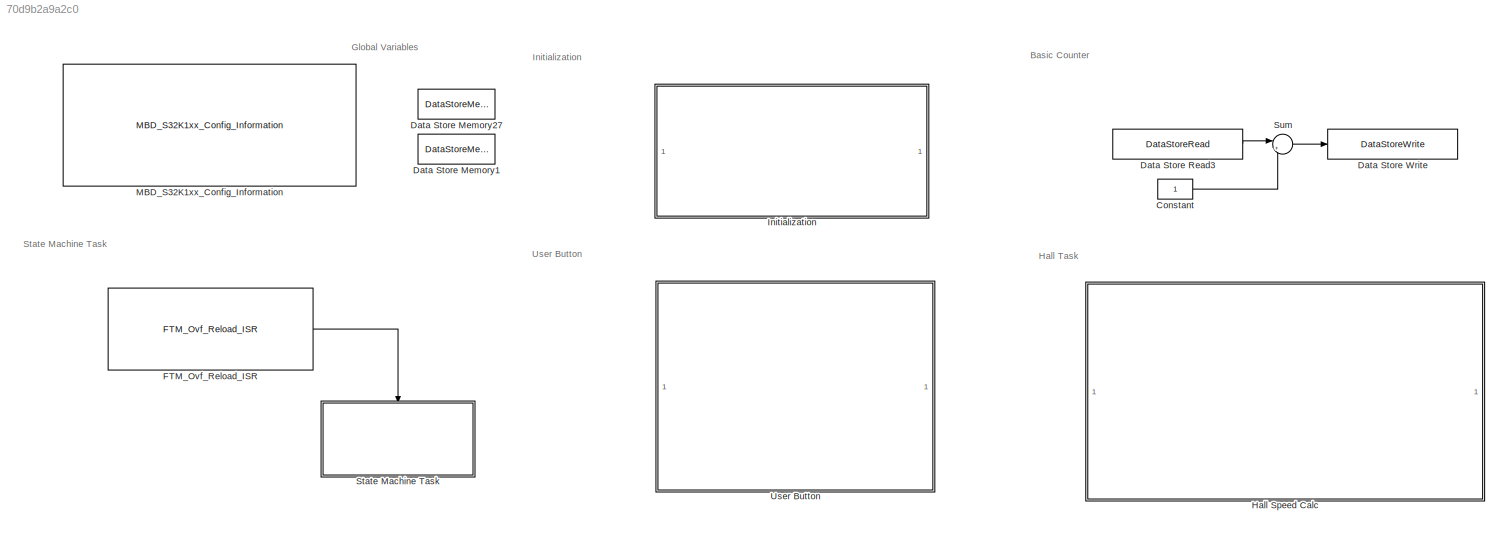
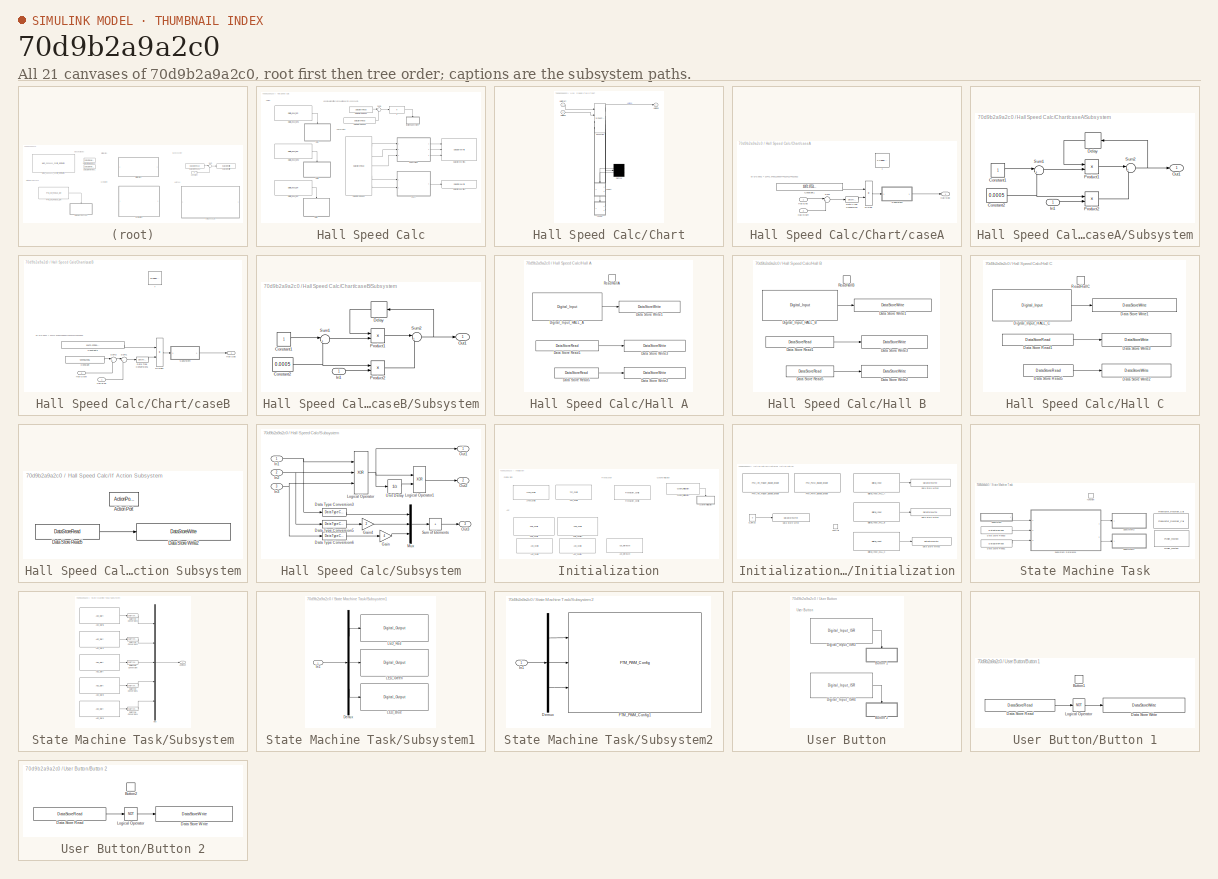
[diagram: thumbnail index - all 21 canvases of the model, root first then tree order]
MODEL slx_70d9b2a9a2c0
KIND model
CONFIG AbsTol = auto
CONFIG EnableMultiTasking = off
CONFIG FixedStep = Ts
CONFIG InitFcn = mbd_s32k_consistency_checks(bdroot(gcs));
CONFIG MaxStep = auto
CONFIG MinStep = auto
CONFIG RelTol = 1e-3
CONFIG SampleTimeConstraint = Unconstrained
CONFIG SolverName = FixedStepDiscrete
CONFIG StartTime = 0.0
CONFIG StopTime = 10.0
BLOCK [Constant] Constant
  OutDataTypeStr = uint32
BLOCK [DataStoreMemory] Data Store Memory1
  DataStoreName = varHall
  OutDataTypeStr = Bus: structHall
  ReadBeforeWriteMsg = warning
  ShowAdditionalParam = off
  WriteAfterReadMsg = warning
  WriteAfterWriteMsg = warning
BLOCK [DataStoreMemory] Data Store Memory27
  DataStoreName = varSystem
  OutDataTypeStr = Bus: structSystem
  ReadBeforeWriteMsg = warning
  ShowAdditionalParam = off
  WriteAfterReadMsg = warning
  WriteAfterWriteMsg = warning
BLOCK [DataStoreRead] Data Store Read3
  DataStoreElements = varSystem.basicTimer
  DataStoreName = varSystem
  Ports = [0, 1]
BLOCK [DataStoreWrite] Data Store Write
  DataStoreElements = varSystem.basicTimer
  DataStoreName = varSystem
  Ports = [1]
BLOCK [Reference] FTM_Ovf_Reload_ISR  REF=mbd_s32k1xx_ec_toolbox/Motor Control Blocks/FTM Blocks/FTM_Ovf_Reload_ISR
  Ports = [0, 1]
  Priority = 10
  SourceBlock = mbd_s32k1xx_ec_toolbox/Motor Control Blocks/FTM Blocks/FTM_Ovf_Reload_ISR
  SourceType = FTM_s32k_ovf_reload_isr
BLOCK [SubSystem] Hall Speed Calc
  Ports = []
  RequestExecContextInheritance = off
BLOCK [SubSystem] Hall Speed Calc/Chart
  ErrorFcn = Stateflow.Translate.translate
  PermitHierarchicalResolution = ExplicitOnly
  Ports = [2, 1]
  RequestExecContextInheritance = off
  SFBlockType = Chart
  TreatAsAtomicUnit = on
BLOCK [Demux] Hall Speed Calc/Chart/ Demux 
  Outputs = 2
  Ports = [1, 2]
BLOCK [S-Function] Hall Speed Calc/Chart/ SFunction 
  EnableBusSupport = on
  FunctionName = sf_sfun
  PortCounts = [4 6]
  Ports = [4, 6]
  SFcnIsStateOwnerBlock = off
  SFunctionDeploymentMode = off
  Tag = Stateflow S-Function 2
BLOCK [Inport] Hall Speed Calc/Chart/HallEnd
  Port = 2
BLOCK [Outport] Hall Speed Calc/Chart/HallSpd
BLOCK [Inport] Hall Speed Calc/Chart/HallStart
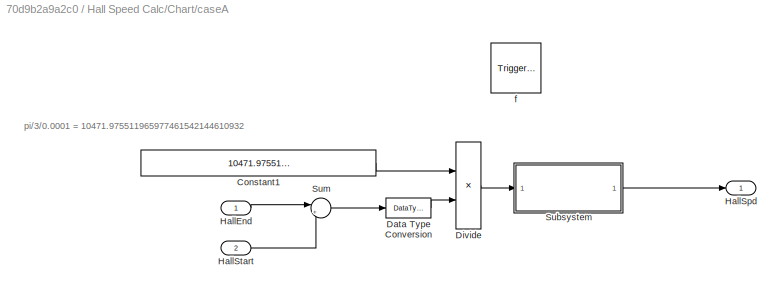
BLOCK [SubSystem] Hall Speed Calc/Chart/caseA
  Ports = [2, 1, 0, 1]
  PreDeleteFcn = Stateflow.SLINSF.SimulinkMan.removePreDeleteFcn
  RequestExecContextInheritance = off
  UndoDeleteFcn = Stateflow.SLINSF.SimulinkMan.restorePreDeleteFcn
BLOCK [Constant] Hall Speed Calc/Chart/caseA/Constant1
  OutDataTypeStr = single
  Value = 10471.975511965977461542144610932
BLOCK [DataTypeConversion] Hall Speed Calc/Chart/caseA/Data Type Conversion
  OutDataTypeStr = single
  RndMeth = Floor
  SaturateOnIntegerOverflow = off
BLOCK [Product] Hall Speed Calc/Chart/caseA/Divide
  Inputs = */
  Ports = [2, 1]
BLOCK [Inport] Hall Speed Calc/Chart/caseA/HallEnd
  OutDataTypeStr = uint32
  PortDimensions = 1
  SignalType = real
  VarSizeSig = No
BLOCK [Outport] Hall Speed Calc/Chart/caseA/HallSpd
  OutDataTypeStr = single
  PortDimensions = 1
BLOCK [Inport] Hall Speed Calc/Chart/caseA/HallStart
  OutDataTypeStr = uint32
  Port = 2
  PortDimensions = 1
  SignalType = real
  VarSizeSig = No
BLOCK [SubSystem] Hall Speed Calc/Chart/caseA/Subsystem
  Ports = [1, 1]
  RequestExecContextInheritance = off
BLOCK [Constant] Hall Speed Calc/Chart/caseA/Subsystem/Constant1
  OutDataTypeStr = single
BLOCK [Constant] Hall Speed Calc/Chart/caseA/Subsystem/Constant2
  OutDataTypeStr = single
  Value = 0.0005
BLOCK [Delay] Hall Speed Calc/Chart/caseA/Subsystem/Delay
  DelayLength = 1
  InitialCondition = 0
  InputPortMap = u0
  Ports = [1, 1]
BLOCK [Inport] Hall Speed Calc/Chart/caseA/Subsystem/In1
BLOCK [Outport] Hall Speed Calc/Chart/caseA/Subsystem/Out1
BLOCK [Product] Hall Speed Calc/Chart/caseA/Subsystem/Product1
  Ports = [2, 1]
BLOCK [Product] Hall Speed Calc/Chart/caseA/Subsystem/Product2
  Ports = [2, 1]
BLOCK [Sum] Hall Speed Calc/Chart/caseA/Subsystem/Sum1
  Inputs = |+-
  Ports = [2, 1]
BLOCK [Sum] Hall Speed Calc/Chart/caseA/Subsystem/Sum2
  Inputs = |++
  Ports = [2, 1]
BLOCK [Sum] Hall Speed Calc/Chart/caseA/Sum
  Inputs = |+-
  Ports = [2, 1]
BLOCK [TriggerPort] Hall Speed Calc/Chart/caseA/f
  CopyFcn = Stateflow.SLINSF.SimulinkMan.removeBlockPreDeleteFcn
  Ports = []
  PreDeleteFcn = Stateflow.SLINSF.SimulinkMan.unsafePredeleteFcn
  StatesWhenEnabling = held
  TriggerType = function-call
  VariantControl = (inherit)
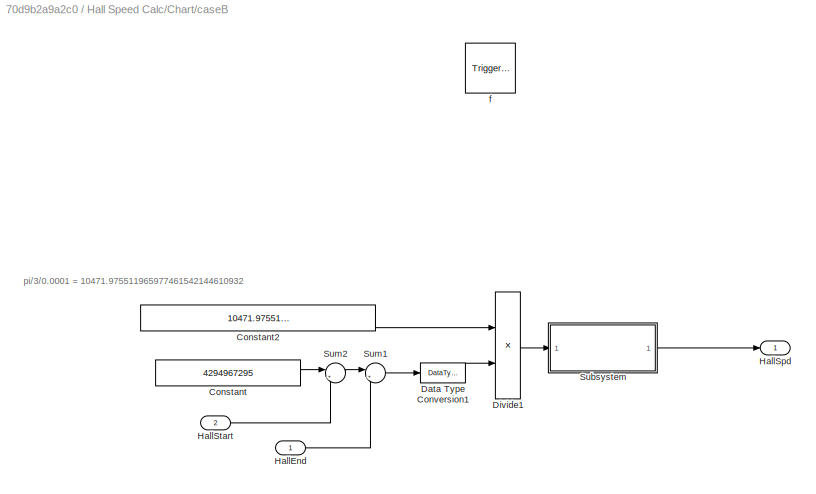
BLOCK [SubSystem] Hall Speed Calc/Chart/caseB
  Ports = [2, 1, 0, 1]
  PreDeleteFcn = Stateflow.SLINSF.SimulinkMan.removePreDeleteFcn
  RequestExecContextInheritance = off
  UndoDeleteFcn = Stateflow.SLINSF.SimulinkMan.restorePreDeleteFcn
BLOCK [Constant] Hall Speed Calc/Chart/caseB/Constant
  OutDataTypeStr = uint32
  Value = 4294967295
BLOCK [Constant] Hall Speed Calc/Chart/caseB/Constant2
  OutDataTypeStr = single
  Value = 10471.975511965977461542144610932
BLOCK [DataTypeConversion] Hall Speed Calc/Chart/caseB/Data Type Conversion1
  OutDataTypeStr = single
  RndMeth = Floor
  SaturateOnIntegerOverflow = off
BLOCK [Product] Hall Speed Calc/Chart/caseB/Divide1
  Inputs = */
  Ports = [2, 1]
BLOCK [Inport] Hall Speed Calc/Chart/caseB/HallEnd
  OutDataTypeStr = uint32
  PortDimensions = 1
  SignalType = real
  VarSizeSig = No
BLOCK [Outport] Hall Speed Calc/Chart/caseB/HallSpd
  OutDataTypeStr = single
  PortDimensions = 1
BLOCK [Inport] Hall Speed Calc/Chart/caseB/HallStart
  OutDataTypeStr = uint32
  Port = 2
  PortDimensions = 1
  SignalType = real
  VarSizeSig = No
BLOCK [SubSystem] Hall Speed Calc/Chart/caseB/Subsystem
  Ports = [1, 1]
  RequestExecContextInheritance = off
BLOCK [Constant] Hall Speed Calc/Chart/caseB/Subsystem/Constant1
  OutDataTypeStr = single
BLOCK [Constant] Hall Speed Calc/Chart/caseB/Subsystem/Constant2
  OutDataTypeStr = single
  Value = 0.0005
BLOCK [Delay] Hall Speed Calc/Chart/caseB/Subsystem/Delay
  DelayLength = 1
  InitialCondition = 0
  InputPortMap = u0
  Ports = [1, 1]
BLOCK [Inport] Hall Speed Calc/Chart/caseB/Subsystem/In1
BLOCK [Outport] Hall Speed Calc/Chart/caseB/Subsystem/Out1
BLOCK [Product] Hall Speed Calc/Chart/caseB/Subsystem/Product1
  Ports = [2, 1]
BLOCK [Product] Hall Speed Calc/Chart/caseB/Subsystem/Product2
  Ports = [2, 1]
BLOCK [Sum] Hall Speed Calc/Chart/caseB/Subsystem/Sum1
  Inputs = |+-
  Ports = [2, 1]
BLOCK [Sum] Hall Speed Calc/Chart/caseB/Subsystem/Sum2
  Inputs = |++
  Ports = [2, 1]
BLOCK [Sum] Hall Speed Calc/Chart/caseB/Sum1
  Inputs = |++
  Ports = [2, 1]
BLOCK [Sum] Hall Speed Calc/Chart/caseB/Sum2
  Inputs = |+-
  Ports = [2, 1]
BLOCK [TriggerPort] Hall Speed Calc/Chart/caseB/f
  CopyFcn = Stateflow.SLINSF.SimulinkMan.removeBlockPreDeleteFcn
  Ports = []
  PreDeleteFcn = Stateflow.SLINSF.SimulinkMan.unsafePredeleteFcn
  StatesWhenEnabling = held
  TriggerType = function-call
  VariantControl = (inherit)
BLOCK [DataStoreRead] Hall Speed Calc/Data Store Read1
  DataStoreElements = varSystem.basicTimer
  DataStoreName = varSystem
  Ports = [0, 1]
BLOCK [DataStoreRead] Hall Speed Calc/Data Store Read2
  DataStoreElements = varHall.HallSignal.HallA#varHall.HallSignal.HallB#varHall.HallSignal.HallC#varHall.HallSpd.HallStart#varHall.HallSpd.HallEnd
  DataStoreName = varHall
  Ports = [0, 5]
BLOCK [DataStoreRead] Hall Speed Calc/Data Store Read3
  DataStoreElements = varHall.HallSpd.HallEnd
  DataStoreName = varHall
  Ports = [0, 1]
BLOCK [DataStoreWrite] Hall Speed Calc/Data Store Write1
  DataStoreElements = varHall.HallSpd.HallSpd
  DataStoreName = varHall
  Ports = [1]
BLOCK [DataStoreWrite] Hall Speed Calc/Data Store Write5
  DataStoreElements = varHall.HallCalc.HallXOR#varHall.HallCalc.HallEdgeEvent#varHall.HallCalc.HallSum
  DataStoreName = varHall
  Ports = [3]
BLOCK [Reference] Hall Speed Calc/Digital_Input_ISR  REF=mbd_s32k1xx_ec_toolbox/GPIO Blocks/Digital_Input_ISR
  Ports = [0, 1]
  SourceBlock = mbd_s32k1xx_ec_toolbox/GPIO Blocks/Digital_Input_ISR
  SourceType = gpi_s32k_isr
BLOCK [Reference] Hall Speed Calc/Digital_Input_ISR1  REF=mbd_s32k1xx_ec_toolbox/GPIO Blocks/Digital_Input_ISR
  Ports = [0, 1]
  SourceBlock = mbd_s32k1xx_ec_toolbox/GPIO Blocks/Digital_Input_ISR
  SourceType = gpi_s32k_isr
BLOCK [Reference] Hall Speed Calc/Digital_Input_ISR2  REF=mbd_s32k1xx_ec_toolbox/GPIO Blocks/Digital_Input_ISR
  Ports = [0, 1]
  SourceBlock = mbd_s32k1xx_ec_toolbox/GPIO Blocks/Digital_Input_ISR
  SourceType = gpi_s32k_isr
BLOCK [SubSystem] Hall Speed Calc/Hall A
  Ports = [0, 0, 0, 1]
  RequestExecContextInheritance = off
  TreatAsAtomicUnit = on
BLOCK [DataStoreRead] Hall Speed Calc/Hall A/Data Store Read1
  DataStoreElements = varHall.HallSpd.HallEnd
  DataStoreName = varHall
  Ports = [0, 1]
BLOCK [DataStoreRead] Hall Speed Calc/Hall A/Data Store Read5
  DataStoreElements = varSystem.basicTimer
  DataStoreName = varSystem
  Ports = [0, 1]
BLOCK [DataStoreWrite] Hall Speed Calc/Hall A/Data Store Write1
  DataStoreElements = varHall.HallSignal.HallA
  DataStoreName = varHall
  Ports = [1]
BLOCK [DataStoreWrite] Hall Speed Calc/Hall A/Data Store Write2
  DataStoreElements = varHall.HallSpd.HallEnd
  DataStoreName = varHall
  Ports = [1]
BLOCK [DataStoreWrite] Hall Speed Calc/Hall A/Data Store Write3
  DataStoreElements = varHall.HallSpd.HallStart
  DataStoreName = varHall
  Ports = [1]
BLOCK [Reference] Hall Speed Calc/Hall A/Digital_Input_HALL_A  REF=mbd_s32k1xx_ec_toolbox/GPIO Blocks/Digital_Input
  Ports = [0, 1]
  SourceBlock = mbd_s32k1xx_ec_toolbox/GPIO Blocks/Digital_Input
  SourceType = gpio_s32k_input
BLOCK [TriggerPort] Hall Speed Calc/Hall A/ReadHallA
  Ports = []
  StatesWhenEnabling = held
  TriggerType = function-call
  VariantControl = Variant
BLOCK [SubSystem] Hall Speed Calc/Hall B
  Ports = [0, 0, 0, 1]
  RequestExecContextInheritance = off
  TreatAsAtomicUnit = on
BLOCK [DataStoreRead] Hall Speed Calc/Hall B/Data Store Read1
  DataStoreElements = varHall.HallSpd.HallEnd
  DataStoreName = varHall
  Ports = [0, 1]
BLOCK [DataStoreRead] Hall Speed Calc/Hall B/Data Store Read5
  DataStoreElements = varSystem.basicTimer
  DataStoreName = varSystem
  Ports = [0, 1]
BLOCK [DataStoreWrite] Hall Speed Calc/Hall B/Data Store Write1
  DataStoreElements = varHall.HallSignal.HallB
  DataStoreName = varHall
  Ports = [1]
BLOCK [DataStoreWrite] Hall Speed Calc/Hall B/Data Store Write2
  DataStoreElements = varHall.HallSpd.HallEnd
  DataStoreName = varHall
  Ports = [1]
BLOCK [DataStoreWrite] Hall Speed Calc/Hall B/Data Store Write3
  DataStoreElements = varHall.HallSpd.HallStart
  DataStoreName = varHall
  Ports = [1]
BLOCK [Reference] Hall Speed Calc/Hall B/Digital_Input_HALL_B  REF=mbd_s32k1xx_ec_toolbox/GPIO Blocks/Digital_Input
  Ports = [0, 1]
  SourceBlock = mbd_s32k1xx_ec_toolbox/GPIO Blocks/Digital_Input
  SourceType = gpio_s32k_input
BLOCK [TriggerPort] Hall Speed Calc/Hall B/ReadHallB
  Ports = []
  StatesWhenEnabling = held
  TriggerType = function-call
  VariantControl = Variant
BLOCK [SubSystem] Hall Speed Calc/Hall C
  Ports = [0, 0, 0, 1]
  RequestExecContextInheritance = off
  TreatAsAtomicUnit = on
BLOCK [DataStoreRead] Hall Speed Calc/Hall C/Data Store Read1
  DataStoreElements = varHall.HallSpd.HallEnd
  DataStoreName = varHall
  Ports = [0, 1]
BLOCK [DataStoreRead] Hall Speed Calc/Hall C/Data Store Read5
  DataStoreElements = varSystem.basicTimer
  DataStoreName = varSystem
  Ports = [0, 1]
BLOCK [DataStoreWrite] Hall Speed Calc/Hall C/Data Store Write1
  DataStoreElements = varHall.HallSignal.HallC
  DataStoreName = varHall
  Ports = [1]
BLOCK [DataStoreWrite] Hall Speed Calc/Hall C/Data Store Write2
  DataStoreElements = varHall.HallSpd.HallEnd
  DataStoreName = varHall
  Ports = [1]
BLOCK [DataStoreWrite] Hall Speed Calc/Hall C/Data Store Write3
  DataStoreElements = varHall.HallSpd.HallStart
  DataStoreName = varHall
  Ports = [1]
BLOCK [Reference] Hall Speed Calc/Hall C/Digital_Input_HALL_C  REF=mbd_s32k1xx_ec_toolbox/GPIO Blocks/Digital_Input
  Ports = [0, 1]
  SourceBlock = mbd_s32k1xx_ec_toolbox/GPIO Blocks/Digital_Input
  SourceType = gpio_s32k_input
BLOCK [TriggerPort] Hall Speed Calc/Hall C/ReadHallC
  Ports = []
  StatesWhenEnabling = held
  TriggerType = function-call
  VariantControl = Variant
BLOCK [If] Hall Speed Calc/If
  IfExpression = u1 > 4000
  Ports = [1, 1]
  ShowElse = off
BLOCK [SubSystem] Hall Speed Calc/If Action Subsystem
  Ports = [0, 0, 0, 0, 0, 0, 0, 1]
  RequestExecContextInheritance = off
  TreatAsAtomicUnit = on
BLOCK [ActionPort] Hall Speed Calc/If Action Subsystem/Action Port
  ActionPortLabel = if(u1 > 4000)
BLOCK [DataStoreRead] Hall Speed Calc/If Action Subsystem/Data Store Read5
  DataStoreElements = varSystem.basicTimer
  DataStoreName = varSystem
  Ports = [0, 1]
BLOCK [DataStoreWrite] Hall Speed Calc/If Action Subsystem/Data Store Write2
  DataStoreElements = varHall.HallSpd.HallEnd
  DataStoreName = varHall
  Ports = [1]
BLOCK [SubSystem] Hall Speed Calc/Subsystem
  Ports = [3, 3]
  RequestExecContextInheritance = off
BLOCK [DataTypeConversion] Hall Speed Calc/Subsystem/Data Type Conversion3
  OutDataTypeStr = uint8
  RndMeth = Floor
  SaturateOnIntegerOverflow = off
BLOCK [DataTypeConversion] Hall Speed Calc/Subsystem/Data Type Conversion5
  OutDataTypeStr = uint8
  RndMeth = Floor
  SaturateOnIntegerOverflow = off
BLOCK [DataTypeConversion] Hall Speed Calc/Subsystem/Data Type Conversion6
  OutDataTypeStr = uint8
  RndMeth = Floor
  SaturateOnIntegerOverflow = off
BLOCK [Gain] Hall Speed Calc/Subsystem/Gain
  Gain = 4
  OutDataTypeStr = uint8
BLOCK [Gain] Hall Speed Calc/Subsystem/Gain4
  Gain = 2
  OutDataTypeStr = uint8
BLOCK [Inport] Hall Speed Calc/Subsystem/In1
  PortDimensions = 1
BLOCK [Inport] Hall Speed Calc/Subsystem/In2
  Port = 2
  PortDimensions = 1
BLOCK [Inport] Hall Speed Calc/Subsystem/In3
  Port = 3
  PortDimensions = 1
BLOCK [Logic] Hall Speed Calc/Subsystem/Logical Operator
  AllPortsSameDT = off
  Inputs = 3
  Operator = XOR
  OutDataTypeStr = boolean
  Ports = [3, 1]
BLOCK [Logic] Hall Speed Calc/Subsystem/Logical Operator1
  AllPortsSameDT = off
  Operator = XOR
  OutDataTypeStr = boolean
  Ports = [2, 1]
BLOCK [Mux] Hall Speed Calc/Subsystem/Mux
  DisplayOption = bar
  Inputs = 3
  Ports = [3, 1]
BLOCK [Outport] Hall Speed Calc/Subsystem/Out1
BLOCK [Outport] Hall Speed Calc/Subsystem/Out2
  Port = 2
BLOCK [Outport] Hall Speed Calc/Subsystem/Out3
  Port = 3
BLOCK [Sum] Hall Speed Calc/Subsystem/Sum of Elements
  IconShape = rectangular
  Inputs = +
  Ports = [1, 1]
BLOCK [UnitDelay] Hall Speed Calc/Subsystem/Unit Delay
  HasFrameUpgradeWarning = on
  SampleTime = -1
BLOCK [Sum] Hall Speed Calc/Sum1
  Inputs = |+-
  Ports = [2, 1]
BLOCK [SubSystem] Initialization
  Ports = []
  RequestExecContextInheritance = off
BLOCK [Reference] Initialization/ADC_Config  REF=mbd_s32k1xx_ec_toolbox/Motor Control Blocks/ADC Blocks/ADC_Config
  Ports = []
  SourceBlock = mbd_s32k1xx_ec_toolbox/Motor Control Blocks/ADC Blocks/ADC_Config
  SourceType = adc_s32k_config_block
BLOCK [Reference] Initialization/ADC_Config1  REF=mbd_s32k1xx_ec_toolbox/Motor Control Blocks/ADC Blocks/ADC_Config
  Ports = []
  SourceBlock = mbd_s32k1xx_ec_toolbox/Motor Control Blocks/ADC Blocks/ADC_Config
  SourceType = adc_s32k_config_block
BLOCK [Reference] Initialization/ADC_Interleave  REF=mbd_s32k1xx_ec_toolbox/Motor Control Blocks/ADC Blocks/ADC_Interleave
  Ports = []
  SourceBlock = mbd_s32k1xx_ec_toolbox/Motor Control Blocks/ADC Blocks/ADC_Interleave
  SourceType = adc_s32k_interleave_block
BLOCK [Reference] Initialization/Custom_Initialization  REF=mbd_s32k1xx_ec_toolbox/Utility Blocks/Custom_Initialization
  Ports = [0, 1]
  SourceBlock = mbd_s32k1xx_ec_toolbox/Utility Blocks/Custom_Initialization
  SourceType = custom_init_s32k_trigger_block
BLOCK [SubSystem] Initialization/Customer Initialization
  Ports = [0, 0, 0, 1]
  RequestExecContextInheritance = off
  TreatAsAtomicUnit = on
BLOCK [Constant] Initialization/Customer Initialization/0_uint32
  OutDataTypeStr = uint32
  Value = 0
BLOCK [TriggerPort] Initialization/Customer Initialization/CustInit
  Ports = []
  StatesWhenEnabling = held
  TriggerType = function-call
  VariantControl = Variant
BLOCK [DataStoreWrite] Initialization/Customer Initialization/Data Store Write
  DataStoreElements = varSystem.basicTimer
  DataStoreName = varSystem
  Ports = [1]
BLOCK [DataStoreWrite] Initialization/Customer Initialization/Data Store Write1
  DataStoreElements = varHall.HallSignal.HallB
  DataStoreName = varHall
  Ports = [1]
BLOCK [DataStoreWrite] Initialization/Customer Initialization/Data Store Write2
  DataStoreElements = varHall.HallSignal.HallA
  DataStoreName = varHall
  Ports = [1]
BLOCK [DataStoreWrite] Initialization/Customer Initialization/Data Store Write3
  DataStoreElements = varHall.HallSignal.HallC
  DataStoreName = varHall
  Ports = [1]
BLOCK [Reference] Initialization/Customer Initialization/Digital_Input_HALL_A  REF=mbd_s32k1xx_ec_toolbox/GPIO Blocks/Digital_Input
  Ports = [0, 1]
  SourceBlock = mbd_s32k1xx_ec_toolbox/GPIO Blocks/Digital_Input
  SourceType = gpio_s32k_input
BLOCK [Reference] Initialization/Customer Initialization/Digital_Input_HALL_B  REF=mbd_s32k1xx_ec_toolbox/GPIO Blocks/Digital_Input
  Ports = [0, 1]
  SourceBlock = mbd_s32k1xx_ec_toolbox/GPIO Blocks/Digital_Input
  SourceType = gpio_s32k_input
BLOCK [Reference] Initialization/Customer Initialization/Digital_Input_HALL_C  REF=mbd_s32k1xx_ec_toolbox/GPIO Blocks/Digital_Input
  Ports = [0, 1]
  SourceBlock = mbd_s32k1xx_ec_toolbox/GPIO Blocks/Digital_Input
  SourceType = gpio_s32k_input
BLOCK [Reference] Initialization/Customer Initialization/FTM_Init_Trigger_Disable_Enable  REF=mbd_s32k1xx_ec_toolbox/Motor Control Blocks/FTM Blocks/FTM_Init_Trigger_Disable_Enable
  Ports = []
  SourceBlock = mbd_s32k1xx_ec_toolbox/Motor Control Blocks/FTM Blocks/FTM_Init_Trigger_Disable_Enable
  SourceType = FTM_s32k_init_disen
BLOCK [Reference] Initialization/Customer Initialization/FTM_PWM_Disable_Enable  REF=mbd_s32k1xx_ec_toolbox/Motor Control Blocks/FTM Blocks/FTM_PWM_Disable_Enable
  Ports = []
  SourceBlock = mbd_s32k1xx_ec_toolbox/Motor Control Blocks/FTM Blocks/FTM_PWM_Disable_Enable
  SourceType = FTM_s32k_pwm_disen
BLOCK [Reference] Initialization/FreeMaster_Config  REF=mbd_s32k1xx_ec_toolbox/Utility Blocks/FreeMaster_Config
  Ports = []
  SourceBlock = mbd_s32k1xx_ec_toolbox/Utility Blocks/FreeMaster_Config
  SourceType = fm_s32k_config
BLOCK [Reference] Initialization/LPSPI_Config   REF=mbd_s32k1xx_ec_toolbox/Communication Blocks/SPI Blocks/LPSPI_Config

  Ports = []
  SourceBlock = mbd_s32k1xx_ec_toolbox/Communication Blocks/SPI Blocks/LPSPI_Config
  SourceType = lpspi_s32k_config
BLOCK [Reference] Initialization/PDB_Config  REF=mbd_s32k1xx_ec_toolbox/Motor Control Blocks/PDB Blocks/PDB_Config
  Ports = []
  SourceBlock = mbd_s32k1xx_ec_toolbox/Motor Control Blocks/PDB Blocks/PDB_Config
  SourceType = pdb_s32k_config_block
BLOCK [Reference] Initialization/PDB_Config1  REF=mbd_s32k1xx_ec_toolbox/Motor Control Blocks/PDB Blocks/PDB_Config
  Ports = []
  SourceBlock = mbd_s32k1xx_ec_toolbox/Motor Control Blocks/PDB Blocks/PDB_Config
  SourceType = pdb_s32k_config_block
BLOCK [Reference] Initialization/TPP_Config  REF=mbd_msd_ec_toolbox/TPP/TPP_Config
  Ports = []
  Priority = 1
  SourceBlock = mbd_msd_ec_toolbox/TPP/TPP_Config
  SourceType = tpp_s32k_config
BLOCK [Reference] MBD_S32K1xx_Config_Information  REF=mbd_s32k1xx_ec_toolbox/MBD_S32K1xx_Config_Information
  Ports = []
  SourceBlock = mbd_s32k1xx_ec_toolbox/MBD_S32K1xx_Config_Information
  SourceType = MBDTBX_EC_S32K
BLOCK [SubSystem] State Machine Task
  Ports = [0, 0, 0, 1]
  RequestExecContextInheritance = off
BLOCK [DataStoreRead] State Machine Task/Data Store Read1
  DataStoreElements = varSystem.faultSwitch
  DataStoreName = varSystem
  Ports = [0, 1]
BLOCK [DataStoreRead] State Machine Task/Data Store Read3
  DataStoreElements = varSystem.motorSwitch
  DataStoreName = varSystem
  Ports = [0, 1]
BLOCK [Reference] State Machine Task/FreeMaster_Recorder_Call  REF=mbd_s32k1xx_ec_toolbox/Utility Blocks/FreeMaster_Recorder_Call
  Ports = []
  SourceBlock = mbd_s32k1xx_ec_toolbox/Utility Blocks/FreeMaster_Recorder_Call
  SourceType = fm_s32k_recorder_call
BLOCK [Reference] State Machine Task/Profiler_Function  REF=mbd_s32k1xx_ec_toolbox/Utility Blocks/Profiler_Function
  Ports = []
  SourceBlock = mbd_s32k1xx_ec_toolbox/Utility Blocks/Profiler_Function
  SourceType = profiler_s32k_func
BLOCK [SubSystem] State Machine Task/Subsystem
  Ports = [0, 1]
  RequestExecContextInheritance = off
BLOCK [SubSystem] State Machine Task/Subsystem Reference
  Ports = [3, 2]
  ReferencedSubsystem = FOC_Sub_StateMch
  RequestExecContextInheritance = off
BLOCK [Reference] State Machine Task/Subsystem/ADC_Start  REF=mbd_s32k1xx_ec_toolbox/Motor Control Blocks/ADC Blocks/ADC_Start
  Ports = [0, 1]
  SourceBlock = mbd_s32k1xx_ec_toolbox/Motor Control Blocks/ADC Blocks/ADC_Start
  SourceType = adc_s32k_start_block
BLOCK [Reference] State Machine Task/Subsystem/ADC_Start1  REF=mbd_s32k1xx_ec_toolbox/Motor Control Blocks/ADC Blocks/ADC_Start
  Ports = [0, 1]
  SourceBlock = mbd_s32k1xx_ec_toolbox/Motor Control Blocks/ADC Blocks/ADC_Start
  SourceType = adc_s32k_start_block
BLOCK [Reference] State Machine Task/Subsystem/ADC_Start2  REF=mbd_s32k1xx_ec_toolbox/Motor Control Blocks/ADC Blocks/ADC_Start
  Ports = [0, 1]
  SourceBlock = mbd_s32k1xx_ec_toolbox/Motor Control Blocks/ADC Blocks/ADC_Start
  SourceType = adc_s32k_start_block
BLOCK [Reference] State Machine Task/Subsystem/ADC_Start4  REF=mbd_s32k1xx_ec_toolbox/Motor Control Blocks/ADC Blocks/ADC_Start
  Ports = [0, 1]
  SourceBlock = mbd_s32k1xx_ec_toolbox/Motor Control Blocks/ADC Blocks/ADC_Start
  SourceType = adc_s32k_start_block
BLOCK [Reference] State Machine Task/Subsystem/ADC_Start5  REF=mbd_s32k1xx_ec_toolbox/Motor Control Blocks/ADC Blocks/ADC_Start
  Ports = [0, 1]
  SourceBlock = mbd_s32k1xx_ec_toolbox/Motor Control Blocks/ADC Blocks/ADC_Start
  SourceType = adc_s32k_start_block
BLOCK [Outport] State Machine Task/Subsystem/ADCinput
  OutDataTypeStr = uint16
  PortDimensions = 5
BLOCK [DataTypeConversion] State Machine Task/Subsystem/Data Type Conversion
  OutDataTypeStr = uint16
  RndMeth = Floor
  SaturateOnIntegerOverflow = off
BLOCK [DataTypeConversion] State Machine Task/Subsystem/Data Type Conversion1
  OutDataTypeStr = uint16
  RndMeth = Floor
  SaturateOnIntegerOverflow = off
BLOCK [DataTypeConversion] State Machine Task/Subsystem/Data Type Conversion2
  OutDataTypeStr = uint16
  RndMeth = Floor
  SaturateOnIntegerOverflow = off
BLOCK [DataTypeConversion] State Machine Task/Subsystem/Data Type Conversion3
  OutDataTypeStr = uint16
  RndMeth = Floor
  SaturateOnIntegerOverflow = off
BLOCK [DataTypeConversion] State Machine Task/Subsystem/Data Type Conversion4
  OutDataTypeStr = uint16
  RndMeth = Floor
  SaturateOnIntegerOverflow = off
BLOCK [Mux] State Machine Task/Subsystem/Mux
  DisplayOption = bar
  Inputs = 5
  Ports = [5, 1]
BLOCK [SubSystem] State Machine Task/Subsystem1
  Ports = [1]
  RequestExecContextInheritance = off
BLOCK [Demux] State Machine Task/Subsystem1/Demux
  Outputs = 3
  Ports = [1, 3]
BLOCK [Inport] State Machine Task/Subsystem1/In1
  PortDimensions = 3
BLOCK [Reference] State Machine Task/Subsystem1/LED_Blue  REF=mbd_s32k1xx_ec_toolbox/GPIO Blocks/Digital_Output
  Ports = [1]
  SourceBlock = mbd_s32k1xx_ec_toolbox/GPIO Blocks/Digital_Output
  SourceType = gpio_s32k_output
BLOCK [Reference] State Machine Task/Subsystem1/LED_Green  REF=mbd_s32k1xx_ec_toolbox/GPIO Blocks/Digital_Output
  Ports = [1]
  SourceBlock = mbd_s32k1xx_ec_toolbox/GPIO Blocks/Digital_Output
  SourceType = gpio_s32k_output
BLOCK [Reference] State Machine Task/Subsystem1/LED_Red  REF=mbd_s32k1xx_ec_toolbox/GPIO Blocks/Digital_Output
  Ports = [1]
  SourceBlock = mbd_s32k1xx_ec_toolbox/GPIO Blocks/Digital_Output
  SourceType = gpio_s32k_output
BLOCK [SubSystem] State Machine Task/Subsystem2
  Ports = [1]
  RequestExecContextInheritance = off
BLOCK [Demux] State Machine Task/Subsystem2/Demux
  Outputs = 3
  Ports = [1, 3]
BLOCK [Reference] State Machine Task/Subsystem2/FTM_PWM_Config1  REF=mbd_s32k1xx_ec_toolbox/Motor Control Blocks/FTM Blocks/FTM_PWM_Config
  Ports = [3]
  Priority = 5
  SourceBlock = mbd_s32k1xx_ec_toolbox/Motor Control Blocks/FTM Blocks/FTM_PWM_Config
  SourceType = FTM_s32k_pwm_config_block
BLOCK [Inport] State Machine Task/Subsystem2/In1
  PortDimensions = 3
BLOCK [TriggerPort] State Machine Task/function
  Ports = []
  StatesWhenEnabling = held
  TriggerType = function-call
  VariantControl = Variant
BLOCK [Sum] Sum
  Inputs = |++
  Ports = [2, 1]
BLOCK [SubSystem] User Button
  Ports = []
  RequestExecContextInheritance = off
BLOCK [SubSystem] User Button/Button 1
  Ports = [0, 0, 0, 1]
  RequestExecContextInheritance = off
  TreatAsAtomicUnit = on
BLOCK [TriggerPort] User Button/Button 1/Button1
  Ports = []
  StatesWhenEnabling = held
  TriggerType = function-call
  VariantControl = Variant
BLOCK [DataStoreRead] User Button/Button 1/Data Store Read
  DataStoreElements = varSystem.motorSwitch
  DataStoreName = varSystem
  Ports = [0, 1]
BLOCK [DataStoreWrite] User Button/Button 1/Data Store Write
  DataStoreElements = varSystem.motorSwitch
  DataStoreName = varSystem
  Ports = [1]
BLOCK [Logic] User Button/Button 1/Logical Operator
  AllPortsSameDT = off
  Operator = NOT
  OutDataTypeStr = boolean
  Ports = [1, 1]
BLOCK [SubSystem] User Button/Button 2
  Ports = [0, 0, 0, 1]
  RequestExecContextInheritance = off
  TreatAsAtomicUnit = on
BLOCK [TriggerPort] User Button/Button 2/Button2
  Ports = []
  StatesWhenEnabling = held
  TriggerType = function-call
  VariantControl = Variant
BLOCK [DataStoreRead] User Button/Button 2/Data Store Read
  DataStoreElements = varSystem.faultSwitch
  DataStoreName = varSystem
  Ports = [0, 1]
BLOCK [DataStoreWrite] User Button/Button 2/Data Store Write
  DataStoreElements = varSystem.faultSwitch
  DataStoreName = varSystem
  Ports = [1]
BLOCK [Logic] User Button/Button 2/Logical Operator
  AllPortsSameDT = off
  Operator = NOT
  OutDataTypeStr = boolean
  Ports = [1, 1]
BLOCK [Reference] User Button/Digital_Input_ISR3  REF=mbd_s32k1xx_ec_toolbox/GPIO Blocks/Digital_Input_ISR
  Ports = [0, 1]
  SourceBlock = mbd_s32k1xx_ec_toolbox/GPIO Blocks/Digital_Input_ISR
  SourceType = gpi_s32k_isr
BLOCK [Reference] User Button/Digital_Input_ISR4  REF=mbd_s32k1xx_ec_toolbox/GPIO Blocks/Digital_Input_ISR
  Ports = [0, 1]
  SourceBlock = mbd_s32k1xx_ec_toolbox/GPIO Blocks/Digital_Input_ISR
  SourceType = gpi_s32k_isr
ANNOTATION (root): Basic Counter
ANNOTATION (root): Global Variables
ANNOTATION (root): Hall Task
ANNOTATION (root): Initialization
ANNOTATION (root): State Machine Task
ANNOTATION (root): User Button
ANNOTATION Hall Speed Calc: Hall ISR
ANNOTATION Hall Speed Calc: Hall calculation
ANNOTATION Hall Speed Calc: Update HallEnd if there is no Hall trigger for 4000 counts.
ANNOTATION Hall Speed Calc/Chart/caseA: pi/3/0.0001 = 10471.975511965977461542144610932
ANNOTATION Hall Speed Calc/Chart/caseB: pi/3/0.0001 = 10471.975511965977461542144610932
ANNOTATION Initialization: ADC
ANNOTATION Initialization: Configuration
ANNOTATION Initialization: Customer Initialization
ANNOTATION Initialization: FreeMASTER
ANNOTATION User Button: User Button
LINE Constant:1 -> Sum:2
LINE Data Store Read3:1 -> Sum:1
LINE FTM_Ovf_Reload_ISR:1 -> State Machine Task:trigger
LINE Hall Speed Calc/Chart:1 -> Hall Speed Calc/Data Store Write1:1
LINE Hall Speed Calc/Data Store Read1:1 -> Hall Speed Calc/Sum1:1
LINE Hall Speed Calc/Data Store Read2:1 -> Hall Speed Calc/Subsystem:1
LINE Hall Speed Calc/Data Store Read2:2 -> Hall Speed Calc/Subsystem:2
LINE Hall Speed Calc/Data Store Read2:3 -> Hall Speed Calc/Subsystem:3
LINE Hall Speed Calc/Data Store Read2:4 -> Hall Speed Calc/Chart:1
LINE Hall Speed Calc/Data Store Read2:5 -> Hall Speed Calc/Chart:2
LINE Hall Speed Calc/Data Store Read3:1 -> Hall Speed Calc/Sum1:2
LINE Hall Speed Calc/Digital_Input_ISR1:1 -> Hall Speed Calc/Hall A:trigger
LINE Hall Speed Calc/Digital_Input_ISR2:1 -> Hall Speed Calc/Hall B:trigger
LINE Hall Speed Calc/Digital_Input_ISR:1 -> Hall Speed Calc/Hall C:trigger
LINE Hall Speed Calc/Hall A/Data Store Read1:1 -> Hall Speed Calc/Hall A/Data Store Write3:1
LINE Hall Speed Calc/Hall A/Data Store Read5:1 -> Hall Speed Calc/Hall A/Data Store Write2:1
LINE Hall Speed Calc/Hall A/Digital_Input_HALL_A:1 -> Hall Speed Calc/Hall A/Data Store Write1:1
LINE Hall Speed Calc/Hall B/Data Store Read1:1 -> Hall Speed Calc/Hall B/Data Store Write3:1
LINE Hall Speed Calc/Hall B/Data Store Read5:1 -> Hall Speed Calc/Hall B/Data Store Write2:1
LINE Hall Speed Calc/Hall B/Digital_Input_HALL_B:1 -> Hall Speed Calc/Hall B/Data Store Write1:1
LINE Hall Speed Calc/Hall C/Data Store Read1:1 -> Hall Speed Calc/Hall C/Data Store Write3:1
LINE Hall Speed Calc/Hall C/Data Store Read5:1 -> Hall Speed Calc/Hall C/Data Store Write2:1
LINE Hall Speed Calc/Hall C/Digital_Input_HALL_C:1 -> Hall Speed Calc/Hall C/Data Store Write1:1
LINE Hall Speed Calc/If Action Subsystem/Data Store Read5:1 -> Hall Speed Calc/If Action Subsystem/Data Store Write2:1
LINE Hall Speed Calc/If:1 -> Hall Speed Calc/If Action Subsystem:ifaction
LINE Hall Speed Calc/Subsystem/Data Type Conversion3:1 -> Hall Speed Calc/Subsystem/Mux:1
LINE Hall Speed Calc/Subsystem/Data Type Conversion5:1 -> Hall Speed Calc/Subsystem/Gain4:1
LINE Hall Speed Calc/Subsystem/Data Type Conversion6:1 -> Hall Speed Calc/Subsystem/Gain:1
LINE Hall Speed Calc/Subsystem/Gain4:1 -> Hall Speed Calc/Subsystem/Mux:2
LINE Hall Speed Calc/Subsystem/Gain:1 -> Hall Speed Calc/Subsystem/Mux:3
NET Hall Speed Calc/Subsystem/In1:1 -> Hall Speed Calc/Subsystem/Data Type Conversion3:1, Hall Speed Calc/Subsystem/Logical Operator:1
NET Hall Speed Calc/Subsystem/In2:1 -> Hall Speed Calc/Subsystem/Data Type Conversion5:1, Hall Speed Calc/Subsystem/Logical Operator:2
NET Hall Speed Calc/Subsystem/In3:1 -> Hall Speed Calc/Subsystem/Data Type Conversion6:1, Hall Speed Calc/Subsystem/Logical Operator:3
LINE Hall Speed Calc/Subsystem/Logical Operator1:1 -> Hall Speed Calc/Subsystem/Out2:1
NET Hall Speed Calc/Subsystem/Logical Operator:1 -> Hall Speed Calc/Subsystem/Logical Operator1:1, Hall Speed Calc/Subsystem/Out1:1, Hall Speed Calc/Subsystem/Unit Delay:1
LINE Hall Speed Calc/Subsystem/Mux:1 -> Hall Speed Calc/Subsystem/Sum of Elements:1
LINE Hall Speed Calc/Subsystem/Sum of Elements:1 -> Hall Speed Calc/Subsystem/Out3:1
LINE Hall Speed Calc/Subsystem/Unit Delay:1 -> Hall Speed Calc/Subsystem/Logical Operator1:2
LINE Hall Speed Calc/Subsystem:1 -> Hall Speed Calc/Data Store Write5:1
LINE Hall Speed Calc/Subsystem:2 -> Hall Speed Calc/Data Store Write5:2
LINE Hall Speed Calc/Subsystem:3 -> Hall Speed Calc/Data Store Write5:3
LINE Hall Speed Calc/Sum1:1 -> Hall Speed Calc/If:1
LINE Initialization/Custom_Initialization:1 -> Initialization/Customer Initialization:trigger
LINE Initialization/Customer Initialization/0_uint32:1 -> Initialization/Customer Initialization/Data Store Write:1
LINE Initialization/Customer Initialization/Digital_Input_HALL_A:1 -> Initialization/Customer Initialization/Data Store Write2:1
LINE Initialization/Customer Initialization/Digital_Input_HALL_B:1 -> Initialization/Customer Initialization/Data Store Write1:1
LINE Initialization/Customer Initialization/Digital_Input_HALL_C:1 -> Initialization/Customer Initialization/Data Store Write3:1
LINE State Machine Task/Data Store Read1:1 -> State Machine Task/Subsystem Reference:3
LINE State Machine Task/Data Store Read3:1 -> State Machine Task/Subsystem Reference:2
LINE State Machine Task/Subsystem Reference:1 -> State Machine Task/Subsystem2:1
LINE State Machine Task/Subsystem Reference:2 -> State Machine Task/Subsystem1:1
LINE State Machine Task/Subsystem/ADC_Start1:1 -> State Machine Task/Subsystem/Data Type Conversion2:1
LINE State Machine Task/Subsystem/ADC_Start2:1 -> State Machine Task/Subsystem/Data Type Conversion1:1
LINE State Machine Task/Subsystem/ADC_Start4:1 -> State Machine Task/Subsystem/Data Type Conversion4:1
LINE State Machine Task/Subsystem/ADC_Start5:1 -> State Machine Task/Subsystem/Data Type Conversion3:1
LINE State Machine Task/Subsystem/ADC_Start:1 -> State Machine Task/Subsystem/Data Type Conversion:1
LINE State Machine Task/Subsystem/Data Type Conversion1:1 -> State Machine Task/Subsystem/Mux:4
LINE State Machine Task/Subsystem/Data Type Conversion2:1 -> State Machine Task/Subsystem/Mux:2
LINE State Machine Task/Subsystem/Data Type Conversion3:1 -> State Machine Task/Subsystem/Mux:1
LINE State Machine Task/Subsystem/Data Type Conversion4:1 -> State Machine Task/Subsystem/Mux:5
LINE State Machine Task/Subsystem/Data Type Conversion:1 -> State Machine Task/Subsystem/Mux:3
LINE State Machine Task/Subsystem/Mux:1 -> State Machine Task/Subsystem/ADCinput:1
LINE State Machine Task/Subsystem1/Demux:1 -> State Machine Task/Subsystem1/LED_Red:1
LINE State Machine Task/Subsystem1/Demux:2 -> State Machine Task/Subsystem1/LED_Green:1
LINE State Machine Task/Subsystem1/Demux:3 -> State Machine Task/Subsystem1/LED_Blue:1
LINE State Machine Task/Subsystem1/In1:1 -> State Machine Task/Subsystem1/Demux:1
LINE State Machine Task/Subsystem2/Demux:1 -> State Machine Task/Subsystem2/FTM_PWM_Config1:1
LINE State Machine Task/Subsystem2/Demux:2 -> State Machine Task/Subsystem2/FTM_PWM_Config1:2
LINE State Machine Task/Subsystem2/Demux:3 -> State Machine Task/Subsystem2/FTM_PWM_Config1:3
LINE State Machine Task/Subsystem2/In1:1 -> State Machine Task/Subsystem2/Demux:1
LINE State Machine Task/Subsystem:1 -> State Machine Task/Subsystem Reference:1
LINE Sum:1 -> Data Store Write:1
LINE User Button/Button 1/Data Store Read:1 -> User Button/Button 1/Logical Operator:1
LINE User Button/Button 1/Logical Operator:1 -> User Button/Button 1/Data Store Write:1
LINE User Button/Button 2/Data Store Read:1 -> User Button/Button 2/Logical Operator:1
LINE User Button/Button 2/Logical Operator:1 -> User Button/Button 2/Data Store Write:1
LINE User Button/Digital_Input_ISR3:1 -> User Button/Button 1:trigger
LINE User Button/Digital_Input_ISR4:1 -> User Button/Button 2:trigger
note: NET lines group one-source signal fan-out (src -> all destinations, sorted); 1:1 wires keep LINE
CHART Hall Speed Calc/Chart states=2 transitions=8
  STATE_LABEL 'HallSpd = caseA(HallEnd,HallStart)'
  STATE_LABEL 'HallSpd = caseB(HallEnd,HallStart)'
CHART  states=0 transitions=0
